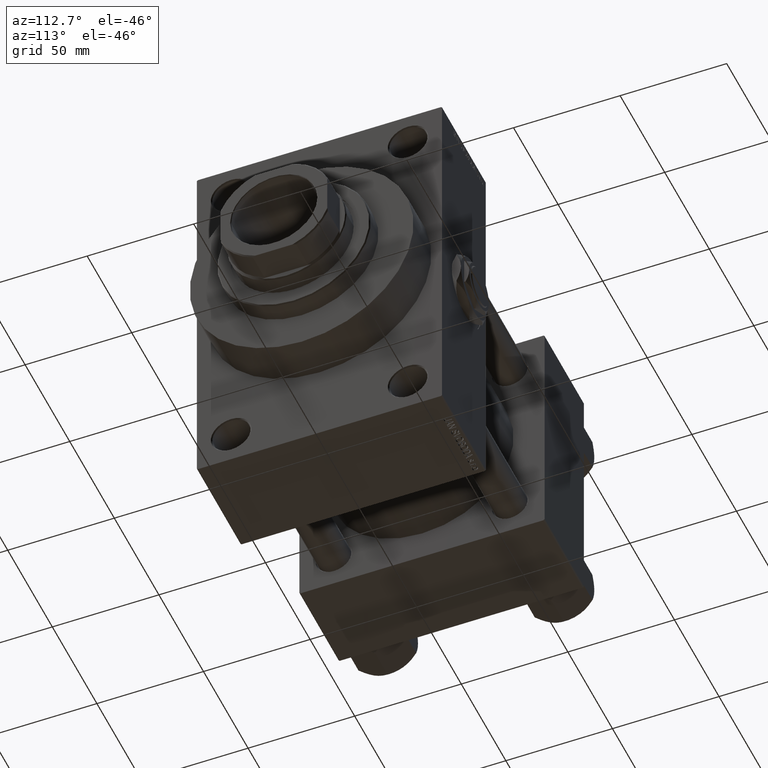
[diagram: clean part render]
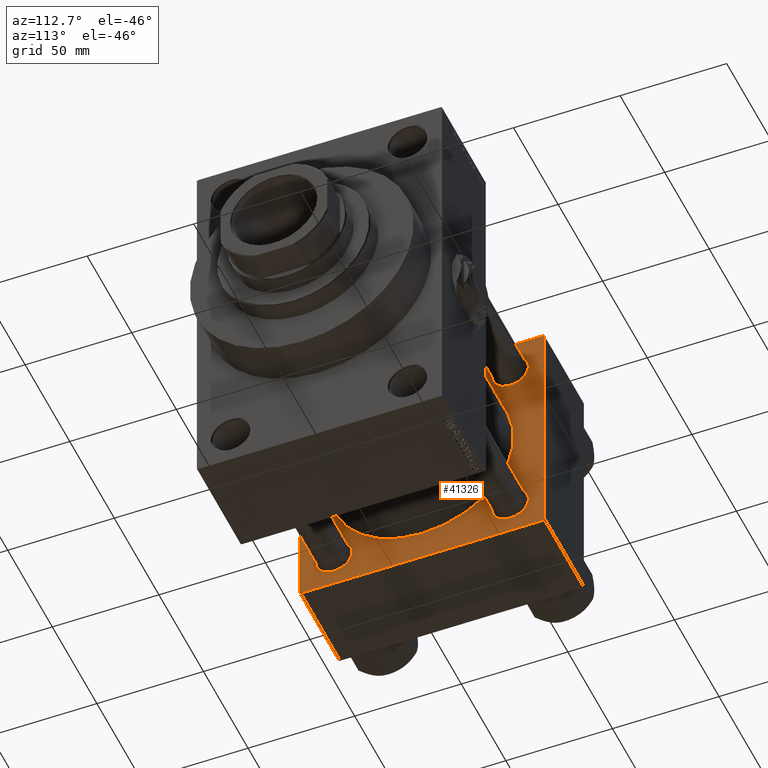
[diagram: same view with one face highlighted and labeled with its STEP entity id]
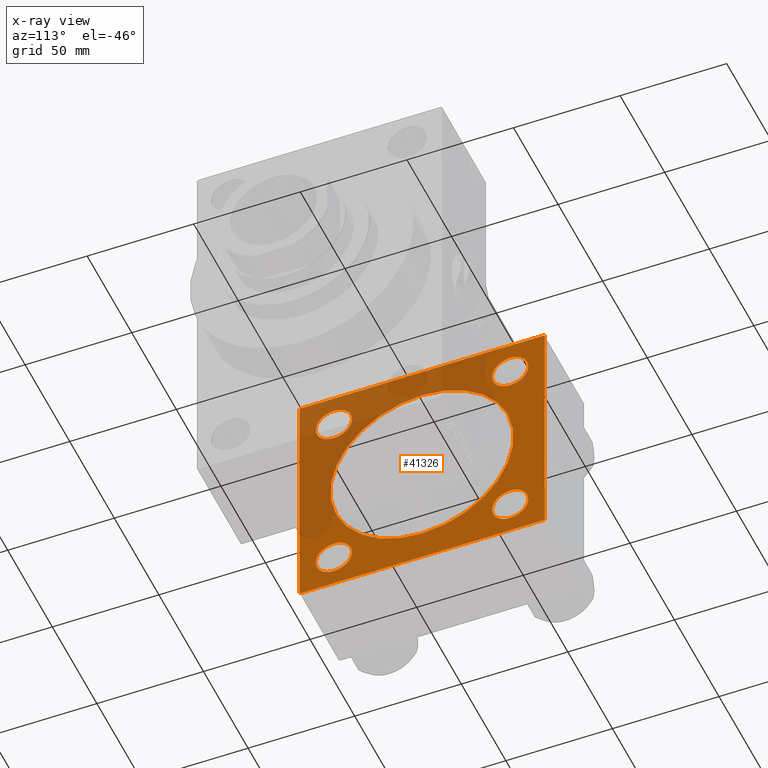
[diagram: x-ray of the same camera — body ghosted, the highlighted face saturated]
A machine part, auxiliary view. The second image highlights one B-rep face of the part: STEP entity #41326.
The next image is the same camera in x-ray: the body ghosted, the highlighted face saturated — about 40% of this face is hidden behind the body in this view.
In plain terms, the highlighted planar face has unit normal (-1, 0, 0).
Its self-contained STEP definition (entity closure, byte-faithful):
#380 = DIRECTION ( 'NONE',  ( -1.000000000000000000, 0.000000000000000000, -0.000000000000000000 ) ) ;
#432 = DIRECTION ( 'NONE',  ( 0.000000000000000000, 0.000000000000000000, 1.000000000000000000 ) ) ;
#583 = EDGE_CURVE ( 'NONE', #2039, #8107, #30396, .T. ) ;
#803 = VECTOR ( 'NONE', #45456, 1000.000000000000000 ) ;
#832 = VERTEX_POINT ( 'NONE', #16473 ) ;
#1009 = AXIS2_PLACEMENT_3D ( 'NONE', #30989, #3710, #8459 ) ;
#1253 = EDGE_CURVE ( 'NONE', #6735, #31017, #16664, .T. ) ;
#1257 = DIRECTION ( 'NONE',  ( 0.000000000000000000, 0.000000000000000000, 1.000000000000000000 ) ) ;
#1583 = ORIENTED_EDGE ( 'NONE', *, *, #1253, .T. ) ;
#2039 = VERTEX_POINT ( 'NONE', #48435 ) ;
#2484 = EDGE_LOOP ( 'NONE', ( #40410, #9388 ) ) ;
#2935 = VERTEX_POINT ( 'NONE', #18557 ) ;
#2971 = EDGE_LOOP ( 'NONE', ( #29846, #18410, #6755, #1583, #42609, #26864, #32252, #36137 ) ) ;
#3208 = AXIS2_PLACEMENT_3D ( 'NONE', #5007, #35539, #1257 ) ;
#3415 = CIRCLE ( 'NONE', #17044, 8.500000000000090594 ) ;
#3459 = LINE ( 'NONE', #49202, #16467 ) ;
#3472 = FACE_BOUND ( 'NONE', #13497, .T. ) ;
#3710 = DIRECTION ( 'NONE',  ( -1.000000000000000000, 0.000000000000000000, -0.000000000000000000 ) ) ;
#4135 = CARTESIAN_POINT ( 'NONE',  ( 44.00000000000000000, 41.34999999999999432, -41.34999999999999432 ) ) ;
#4552 = CARTESIAN_POINT ( 'NONE',  ( 44.00000000000000000, 41.34999999999999432, 41.34999999999999432 ) ) ;
#4606 = LINE ( 'NONE', #11623, #25010 ) ;
#5007 = CARTESIAN_POINT ( 'NONE',  ( 44.00000000000000000, -41.34999999999998721, 41.35000000000000142 ) ) ;
#5107 = ORIENTED_EDGE ( 'NONE', *, *, #39955, .T. ) ;
#5604 = VECTOR ( 'NONE', #28351, 1000.000000000000000 ) ;
#6247 = FACE_BOUND ( 'NONE', #2484, .T. ) ;
#6260 = DIRECTION ( 'NONE',  ( -0.000000000000000000, -0.7071067811865574537, -0.7071067811865376918 ) ) ;
#6735 = VERTEX_POINT ( 'NONE', #14527 ) ;
#6755 = ORIENTED_EDGE ( 'NONE', *, *, #31876, .F. ) ;
#7304 = CARTESIAN_POINT ( 'NONE',  ( 44.00000000000000000, -41.34999999999998721, -49.85000000000009379 ) ) ;
#7738 = EDGE_CURVE ( 'NONE', #41003, #26293, #3415, .T. ) ;
#8107 = VERTEX_POINT ( 'NONE', #18176 ) ;
#8346 = LINE ( 'NONE', #35361, #5604 ) ;
#8459 = DIRECTION ( 'NONE',  ( -0.000000000000000000, 0.000000000000000000, 1.000000000000000000 ) ) ;
#8717 = VERTEX_POINT ( 'NONE', #47301 ) ;
#8886 = CARTESIAN_POINT ( 'NONE',  ( 44.00000000000000000, 57.00000000000001421, 57.50000000000001421 ) ) ;
#9388 = ORIENTED_EDGE ( 'NONE', *, *, #12393, .T. ) ;
#9612 = EDGE_CURVE ( 'NONE', #30182, #24677, #31348, .T. ) ;
#9867 = CARTESIAN_POINT ( 'NONE',  ( 44.00000000000000000, 57.00000000000002842, -57.49999999999999289 ) ) ;
#10486 = CARTESIAN_POINT ( 'NONE',  ( 44.00000000000000000, -41.34999999999998721, -41.35000000000000142 ) ) ;
#10623 = VERTEX_POINT ( 'NONE', #40028 ) ;
#10675 = CARTESIAN_POINT ( 'NONE',  ( 44.00000000000000000, 41.34999999999999432, -32.84999999999990905 ) ) ;
#11553 = DIRECTION ( 'NONE',  ( 0.000000000000000000, 6.033820786006285224E-17, -1.000000000000000000 ) ) ;
#11623 = CARTESIAN_POINT ( 'NONE',  ( 44.00000000000000000, 57.50000000000000000, -57.49999999999999289 ) ) ;
#11630 = CARTESIAN_POINT ( 'NONE',  ( 44.00000000000000000, -41.34999999999998721, 41.35000000000000142 ) ) ;
#11797 = ORIENTED_EDGE ( 'NONE', *, *, #33698, .T. ) ;
#12322 = DIRECTION ( 'NONE',  ( 0.000000000000000000, 0.000000000000000000, 1.000000000000000000 ) ) ;
#12393 = EDGE_CURVE ( 'NONE', #26293, #41003, #16256, .T. ) ;
#13497 = EDGE_LOOP ( 'NONE', ( #11797, #23706 ) ) ;
#13724 = CARTESIAN_POINT ( 'NONE',  ( 44.00000000000000000, -56.99999999999997158, 57.49999999999999289 ) ) ;
#14254 = DIRECTION ( 'NONE',  ( 0.000000000000000000, 0.000000000000000000, 1.000000000000000000 ) ) ;
#14527 = CARTESIAN_POINT ( 'NONE',  ( 44.00000000000000000, 57.50000000000000000, 57.00000000000004263 ) ) ;
#14670 = DIRECTION ( 'NONE',  ( 0.000000000000000000, 0.000000000000000000, 1.000000000000000000 ) ) ;
#14973 = DIRECTION ( 'NONE',  ( 0.000000000000000000, 0.7071067811865524577, -0.7071067811865426878 ) ) ;
#14989 = LINE ( 'NONE', #30244, #803 ) ;
#15136 = CIRCLE ( 'NONE', #43012, 8.500000000000090594 ) ;
#15466 = AXIS2_PLACEMENT_3D ( 'NONE', #49196, #30969, #432 ) ;
#15479 = VERTEX_POINT ( 'NONE', #40577 ) ;
#15489 = AXIS2_PLACEMENT_3D ( 'NONE', #33455, #49169, #48678 ) ;
#15818 = CARTESIAN_POINT ( 'NONE',  ( 44.00000000000000000, 41.34999999999999432, 49.85000000000008669 ) ) ;
#16256 = CIRCLE ( 'NONE', #15466, 8.500000000000090594 ) ;
#16467 = VECTOR ( 'NONE', #14973, 1000.000000000000000 ) ;
#16473 = CARTESIAN_POINT ( 'NONE',  ( 44.00000000000000000, -2.602085213965210642E-15, 43.00000000000000000 ) ) ;
#16664 = LINE ( 'NONE', #31911, #24797 ) ;
#17044 = AXIS2_PLACEMENT_3D ( 'NONE', #4552, #43296, #12322 ) ;
#17358 = EDGE_LOOP ( 'NONE', ( #33089, #31998 ) ) ;
#18176 = CARTESIAN_POINT ( 'NONE',  ( 44.00000000000000000, -41.34999999999998721, 32.84999999999991616 ) ) ;
#18225 = CIRCLE ( 'NONE', #48533, 43.00000000000000000 ) ;
#18410 = ORIENTED_EDGE ( 'NONE', *, *, #9612, .T. ) ;
#18557 = CARTESIAN_POINT ( 'NONE',  ( 44.00000000000000000, 41.34999999999999432, -49.85000000000008669 ) ) ;
#18823 = CARTESIAN_POINT ( 'NONE',  ( 44.00000000000000000, -57.50000000000000000, 57.49999999999999289 ) ) ;
#20160 = EDGE_CURVE ( 'NONE', #15479, #24866, #3459, .T. ) ;
#20854 = DIRECTION ( 'NONE',  ( 1.000000000000000000, -0.000000000000000000, 0.000000000000000000 ) ) ;
#21184 = CARTESIAN_POINT ( 'NONE',  ( 44.00000000000000000, -41.34999999999998721, -32.84999999999991616 ) ) ;
#21525 = FACE_OUTER_BOUND ( 'NONE', #2971, .T. ) ;
#21653 = DIRECTION ( 'NONE',  ( 0.000000000000000000, 0.000000000000000000, 1.000000000000000000 ) ) ;
#21689 = CIRCLE ( 'NONE', #44771, 8.500000000000090594 ) ;
#23405 = DIRECTION ( 'NONE',  ( -1.000000000000000000, 0.000000000000000000, -0.000000000000000000 ) ) ;
#23456 = VECTOR ( 'NONE', #11553, 1000.000000000000000 ) ;
#23706 = ORIENTED_EDGE ( 'NONE', *, *, #41262, .T. ) ;
#23865 = CARTESIAN_POINT ( 'NONE',  ( 44.00000000000000000, -57.00000000000001421, -57.50000000000000711 ) ) ;
#23952 = ORIENTED_EDGE ( 'NONE', *, *, #42499, .F. ) ;
#24677 = VERTEX_POINT ( 'NONE', #44123 ) ;
#24797 = VECTOR ( 'NONE', #27914, 1000.000000000000114 ) ;
#24866 = VERTEX_POINT ( 'NONE', #23865 ) ;
#25010 = VECTOR ( 'NONE', #37884, 1000.000000000000000 ) ;
#25076 = AXIS2_PLACEMENT_3D ( 'NONE', #11630, #23405, #35144 ) ;
#25099 = CARTESIAN_POINT ( 'NONE',  ( 44.00000000000000000, -2.602085213965210642E-15, 0.000000000000000000 ) ) ;
#25386 = EDGE_CURVE ( 'NONE', #27609, #10623, #41475, .T. ) ;
#25530 = CARTESIAN_POINT ( 'NONE',  ( 44.00000000000000000, -57.50000000000000000, 56.99999999999997868 ) ) ;
#26067 = VERTEX_POINT ( 'NONE', #7304 ) ;
#26293 = VERTEX_POINT ( 'NONE', #15818 ) ;
#26582 = CARTESIAN_POINT ( 'NONE',  ( 44.00000000000000000, -41.34999999999998721, -41.35000000000000142 ) ) ;
#26864 = ORIENTED_EDGE ( 'NONE', *, *, #25386, .T. ) ;
#27609 = VERTEX_POINT ( 'NONE', #13724 ) ;
#27914 = DIRECTION ( 'NONE',  ( 0.000000000000000000, -0.7071067811865573427, 0.7071067811865376918 ) ) ;
#28351 = DIRECTION ( 'NONE',  ( 0.000000000000000000, -1.000000000000000000, -1.810146235801885567E-16 ) ) ;
#28768 = VERTEX_POINT ( 'NONE', #21184 ) ;
#29332 = EDGE_LOOP ( 'NONE', ( #23952, #47340 ) ) ;
#29351 = DIRECTION ( 'NONE',  ( -1.000000000000000000, 0.000000000000000000, -0.000000000000000000 ) ) ;
#29846 = ORIENTED_EDGE ( 'NONE', *, *, #37665, .F. ) ;
#30033 = EDGE_CURVE ( 'NONE', #46440, #2935, #15136, .T. ) ;
#30079 = LINE ( 'NONE', #18823, #23456 ) ;
#30182 = VERTEX_POINT ( 'NONE', #9867 ) ;
#30244 = CARTESIAN_POINT ( 'NONE',  ( 44.00000000000000000, 57.50000000000000000, 57.50000000000001421 ) ) ;
#30356 = CARTESIAN_POINT ( 'NONE',  ( 44.00000000000000000, 41.34999999999999432, 32.84999999999990905 ) ) ;
#30396 = CIRCLE ( 'NONE', #3208, 8.500000000000090594 ) ;
#30969 = DIRECTION ( 'NONE',  ( -1.000000000000000000, 0.000000000000000000, -0.000000000000000000 ) ) ;
#30989 = CARTESIAN_POINT ( 'NONE',  ( 44.00000000000000000, 0.000000000000000000, 0.000000000000000000 ) ) ;
#31017 = VERTEX_POINT ( 'NONE', #8886 ) ;
#31163 = AXIS2_PLACEMENT_3D ( 'NONE', #40867, #43449, #21653 ) ;
#31348 = LINE ( 'NONE', #43561, #42606 ) ;
#31876 = EDGE_CURVE ( 'NONE', #6735, #24677, #14989, .T. ) ;
#31911 = CARTESIAN_POINT ( 'NONE',  ( 44.00000000000000000, 57.00000000000001421, 57.50000000000001421 ) ) ;
#31998 = ORIENTED_EDGE ( 'NONE', *, *, #30033, .T. ) ;
#32002 = EDGE_CURVE ( 'NONE', #2935, #46440, #35964, .T. ) ;
#32216 = EDGE_CURVE ( 'NONE', #31017, #27609, #8346, .T. ) ;
#32252 = ORIENTED_EDGE ( 'NONE', *, *, #43128, .T. ) ;
#33015 = PLANE ( 'NONE',  #1009 ) ;
#33089 = ORIENTED_EDGE ( 'NONE', *, *, #32002, .T. ) ;
#33263 = FACE_BOUND ( 'NONE', #45536, .T. ) ;
#33455 = CARTESIAN_POINT ( 'NONE',  ( 44.00000000000000000, -2.602085213965210642E-15, 0.000000000000000000 ) ) ;
#33504 = DIRECTION ( 'NONE',  ( -1.000000000000000000, 0.000000000000000000, -0.000000000000000000 ) ) ;
#33698 = EDGE_CURVE ( 'NONE', #26067, #28768, #21689, .T. ) ;
#35144 = DIRECTION ( 'NONE',  ( 0.000000000000000000, 0.000000000000000000, 1.000000000000000000 ) ) ;
#35361 = CARTESIAN_POINT ( 'NONE',  ( 44.00000000000000000, 57.50000000000000000, 57.50000000000001421 ) ) ;
#35539 = DIRECTION ( 'NONE',  ( -1.000000000000000000, 0.000000000000000000, -0.000000000000000000 ) ) ;
#35964 = CIRCLE ( 'NONE', #31163, 8.500000000000090594 ) ;
#36137 = ORIENTED_EDGE ( 'NONE', *, *, #20160, .T. ) ;
#37010 = FACE_BOUND ( 'NONE', #17358, .T. ) ;
#37360 = ORIENTED_EDGE ( 'NONE', *, *, #583, .T. ) ;
#37665 = EDGE_CURVE ( 'NONE', #30182, #24866, #4606, .T. ) ;
#37824 = CIRCLE ( 'NONE', #25076, 8.500000000000090594 ) ;
#37884 = DIRECTION ( 'NONE',  ( 0.000000000000000000, -1.000000000000000000, -1.206764157201257291E-16 ) ) ;
#39003 = VECTOR ( 'NONE', #6260, 999.9999999999998863 ) ;
#39358 = CIRCLE ( 'NONE', #48229, 8.500000000000090594 ) ;
#39818 = DIRECTION ( 'NONE',  ( -0.000000000000000000, 0.7071067811865328068, 0.7071067811865622277 ) ) ;
#39955 = EDGE_CURVE ( 'NONE', #8107, #2039, #37824, .T. ) ;
#40028 = CARTESIAN_POINT ( 'NONE',  ( 44.00000000000000000, -57.50000000000000000, 56.99999999999997868 ) ) ;
#40210 = CIRCLE ( 'NONE', #15489, 43.00000000000000000 ) ;
#40410 = ORIENTED_EDGE ( 'NONE', *, *, #7738, .T. ) ;
#40577 = CARTESIAN_POINT ( 'NONE',  ( 44.00000000000000000, -57.49999999999999289, -57.00000000000003553 ) ) ;
#40867 = CARTESIAN_POINT ( 'NONE',  ( 44.00000000000000000, 41.34999999999999432, -41.34999999999999432 ) ) ;
#41003 = VERTEX_POINT ( 'NONE', #30356 ) ;
#41262 = EDGE_CURVE ( 'NONE', #28768, #26067, #39358, .T. ) ;
#41326 = ADVANCED_FACE ( 'NONE', ( #3472, #37010, #33263, #6247, #48239, #21525 ), #33015, .F. ) ;
#41475 = LINE ( 'NONE', #25530, #39003 ) ;
#41802 = DIRECTION ( 'NONE',  ( 0.000000000000000000, 0.000000000000000000, 1.000000000000000000 ) ) ;
#42499 = EDGE_CURVE ( 'NONE', #832, #8717, #40210, .T. ) ;
#42606 = VECTOR ( 'NONE', #39818, 1000.000000000000000 ) ;
#42609 = ORIENTED_EDGE ( 'NONE', *, *, #32216, .T. ) ;
#43012 = AXIS2_PLACEMENT_3D ( 'NONE', #4135, #380, #14670 ) ;
#43128 = EDGE_CURVE ( 'NONE', #10623, #15479, #30079, .T. ) ;
#43296 = DIRECTION ( 'NONE',  ( -1.000000000000000000, 0.000000000000000000, -0.000000000000000000 ) ) ;
#43449 = DIRECTION ( 'NONE',  ( -1.000000000000000000, 0.000000000000000000, -0.000000000000000000 ) ) ;
#43561 = CARTESIAN_POINT ( 'NONE',  ( 44.00000000000000000, 57.50000000000000000, -57.00000000000000000 ) ) ;
#44123 = CARTESIAN_POINT ( 'NONE',  ( 44.00000000000000000, 57.50000000000000000, -56.99999999999997158 ) ) ;
#44544 = DIRECTION ( 'NONE',  ( 0.000000000000000000, 0.000000000000000000, 1.000000000000000000 ) ) ;
#44771 = AXIS2_PLACEMENT_3D ( 'NONE', #26582, #29351, #41802 ) ;
#45456 = DIRECTION ( 'NONE',  ( 0.000000000000000000, 0.000000000000000000, -1.000000000000000000 ) ) ;
#45536 = EDGE_LOOP ( 'NONE', ( #5107, #37360 ) ) ;
#46082 = EDGE_CURVE ( 'NONE', #8717, #832, #18225, .T. ) ;
#46440 = VERTEX_POINT ( 'NONE', #10675 ) ;
#47301 = CARTESIAN_POINT ( 'NONE',  ( 44.00000000000000000, 2.663896022368408223E-15, -43.00000000000000000 ) ) ;
#47340 = ORIENTED_EDGE ( 'NONE', *, *, #46082, .F. ) ;
#48229 = AXIS2_PLACEMENT_3D ( 'NONE', #10486, #33504, #14254 ) ;
#48239 = FACE_BOUND ( 'NONE', #29332, .T. ) ;
#48435 = CARTESIAN_POINT ( 'NONE',  ( 44.00000000000000000, -41.34999999999998721, 49.85000000000009379 ) ) ;
#48533 = AXIS2_PLACEMENT_3D ( 'NONE', #25099, #20854, #44544 ) ;
#48678 = DIRECTION ( 'NONE',  ( 0.000000000000000000, 0.000000000000000000, 1.000000000000000000 ) ) ;
#49169 = DIRECTION ( 'NONE',  ( 1.000000000000000000, -0.000000000000000000, 0.000000000000000000 ) ) ;
#49196 = CARTESIAN_POINT ( 'NONE',  ( 44.00000000000000000, 41.34999999999999432, 41.34999999999999432 ) ) ;
#49202 = CARTESIAN_POINT ( 'NONE',  ( 44.00000000000000000, -57.00000000000001421, -57.50000000000000711 ) ) ;